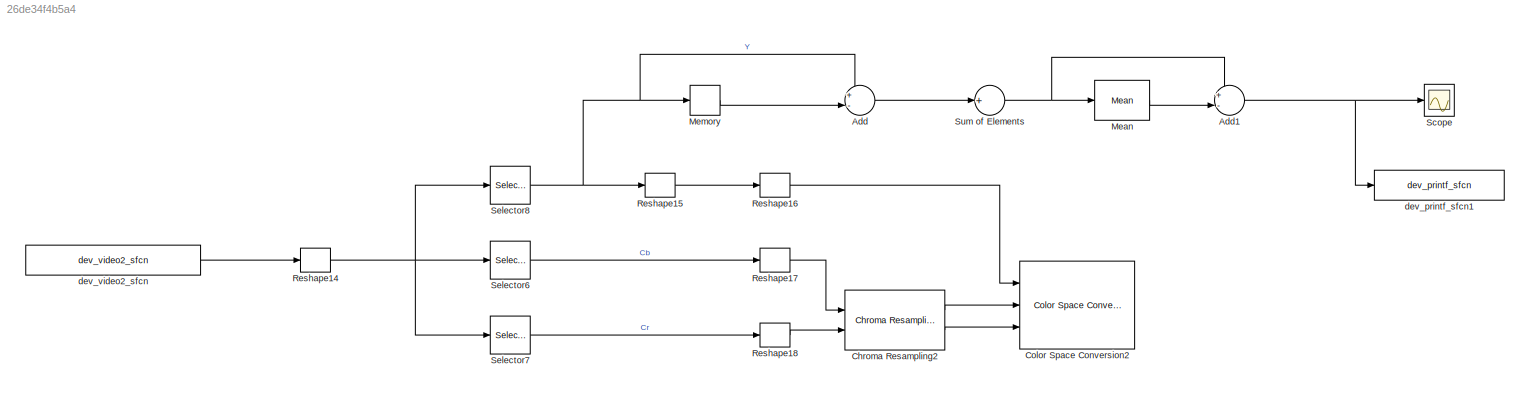
MODEL slx_26de34f4b5a4
KIND model
CONFIG AbsTol = auto
CONFIG FixedStep = 1/400
CONFIG MaxStep = auto
CONFIG MinStep = auto
CONFIG RelTol = 1e-3
CONFIG SampleTimeConstraint = Unconstrained
CONFIG Solver = FixedStepDiscrete
CONFIG SolverMode = Auto
CONFIG SolverName = FixedStepDiscrete
CONFIG StartTime = 0.0
CONFIG StopTime = inf
BLOCK [Sum] Add
  IconShape = round
  InputSameDT = off
  Inputs = +-|
  OutDataTypeStr = Inherit: Inherit via internal rule
  Ports = [2, 1]
  SaturateOnIntegerOverflow = off
BLOCK [Sum] Add1
  IconShape = round
  InputSameDT = off
  Inputs = +-|
  OutDataTypeStr = Inherit: Inherit via internal rule
  Ports = [2, 1]
  SaturateOnIntegerOverflow = off
BLOCK [Reference] Chroma Resampling2  REF=visionconversions/Chroma
Resampling
  Commented = on
  Ports = [2, 2]
  SourceBlock = visionconversions/Chroma\nResampling
  SourceType = Chroma Resampling
  antialiasing = Default
  hcoeff = [0.2 0.6 0.2]
  interpolation = pixel replication
  isInputTransposed = on
  resampling = 4:2:2 to 4:4:4
  vcoeff = [0.5 0.5]
BLOCK [Reference] Color Space Conversion2  REF=visionconversions/Color Space
 Conversion
  Commented = on
  Ports = [3, 3]
  SourceBlock = visionconversions/Color Space\n Conversion
  SourceType = Color Space Conversion
  conversion = Obsolete
  conversionActive = Y'CbCr to R'G'B'
  imagePorts = Separate color signals
  rec = Rec. 601 (SDTV)
  sys = 1125/60/2:1
  wp_str = D65
BLOCK [Reference] Mean  REF=dspstat3/Mean
  InputProcessing = Elements as channels (sample based)
  LockScale = off
  Ports = [1, 1]
  SourceBlock = dspstat3/Mean
  SourceType = Mean
  UserDataPersistent = on
  accumDataTypeStr = Inherit: Same as input
  accumFracLength = 30
  accumLastDataTypeStr = Inherit: Same as input
  accumMode = Same as input
  accumWordLength = 32
  additionalParams = off
  allowOverrides = on
  dimension = 1
  directionMode = Each column
  outputDataTypeStr = Inherit: Same as accumulator
  outputFracLength = 30
  outputLastDataTypeStr = Inherit: Same as accumulator
  outputMax = []
  outputMin = []
  outputMode = Same as accumulator
  outputWordLength = 32
  overflowMode = off
  reset_popup = None
  roiEnable = off
  roiFlag = off
  roiOutput = Individual statistics for each ROI
  roiPortion = Entire ROI
  roiType = Rectangles
  roundingMode = Floor
  run = on
  treatSBRowAsCol = off
BLOCK [Memory] Memory
  InheritSampleTime = on
  X0 = zeros(2,38400)
BLOCK [Reshape] Reshape14
  OutputDimensionality = Customize
  OutputDimensions = [4 320*240*2/4]
  Ports = [1, 1]
BLOCK [Reshape] Reshape15
  Commented = on
  OutputDimensionality = Row vector (2-D)
  OutputDimensions = [4 TotalBufferLength/4]
  Ports = [1, 1]
BLOCK [Reshape] Reshape16
  Commented = on
  OutputDimensionality = Customize
  OutputDimensions = [320 240]
  Ports = [1, 1]
BLOCK [Reshape] Reshape17
  Commented = on
  OutputDimensionality = Customize
  OutputDimensions = [320/2 240]
  Ports = [1, 1]
BLOCK [Reshape] Reshape18
  Commented = on
  OutputDimensionality = Customize
  OutputDimensions = [320/2 240]
  Ports = [1, 1]
BLOCK [Scope] Scope
  Floating = off
  NumInputPorts = 1
  Ports = [1]
  YMax = 8e+06
  YMin = -7e+06
BLOCK [Selector] Selector6
  Commented = on
  IndexOptions = Index vector (dialog),Index vector (dialog)
  Indices = 1,[1:38400]
  InputPortWidth = 3
  NumberOfDimensions = 2
  OutputSizes = 1,1
  Ports = [1, 1]
BLOCK [Selector] Selector7
  Commented = on
  IndexOptions = Index vector (dialog),Index vector (dialog)
  Indices = 3,[1:38400]
  InputPortWidth = 3
  NumberOfDimensions = 2
  OutputSizes = 1,1
  Ports = [1, 1]
BLOCK [Selector] Selector8
  IndexOptions = Index vector (dialog),Index vector (dialog)
  Indices = [2 4],[1:38400]
  InputPortWidth = 3
  NumberOfDimensions = 2
  OutputSizes = 1,1
  Ports = [1, 1]
BLOCK [Sum] Sum of Elements
  InputSameDT = off
  Inputs = +
  OutDataTypeStr = double
  Ports = [1, 1]
  SaturateOnIntegerOverflow = off
BLOCK [Reference] dev_printf_sfcn1  REF=ARdrone_video_lib/dev_printf_sfcn
  Ports = [1]
  SFunctionSpec = ARpintf_Update(uint8 u1)
  SampleTime = -1
  ShowSpec = on
  SourceBlock = ARdrone_video_lib/dev_printf_sfcn
  SourceType = Legacy Function
BLOCK [Reference] dev_video2_sfcn  REF=ARdrone_video_lib/dev_video2_sfcn
  Ports = [0, 1]
  SFunctionSpec = videorabImage2(uint8 y1[153600])
  SampleTime = 1/25
  ShowSpec = on
  SourceBlock = ARdrone_video_lib/dev_video2_sfcn
  SourceType = Legacy Function
NET Add1:1 -> Scope:1, dev_printf_sfcn1:1
LINE Add:1 -> Sum of Elements:1
LINE Chroma Resampling2:1 -> Color Space Conversion2:2
LINE Chroma Resampling2:2 -> Color Space Conversion2:3
LINE Mean:1 -> Add1:2
LINE Memory:1 -> Add:2
NET Reshape14:1 -> Selector6:1, Selector7:1, Selector8:1
LINE Reshape15:1 -> Reshape16:1
LINE Reshape16:1 -> Color Space Conversion2:1
LINE Reshape17:1 -> Chroma Resampling2:1
LINE Reshape18:1 -> Chroma Resampling2:2
LINE Selector6:1 -> Reshape17:1
LINE Selector7:1 -> Reshape18:1
NET Selector8:1 -> Add:1, Memory:1, Reshape15:1
NET Sum of Elements:1 -> Add1:1, Mean:1
LINE dev_video2_sfcn:1 -> Reshape14:1
note: NET lines group one-source signal fan-out (src -> all destinations, sorted); 1:1 wires keep LINE
